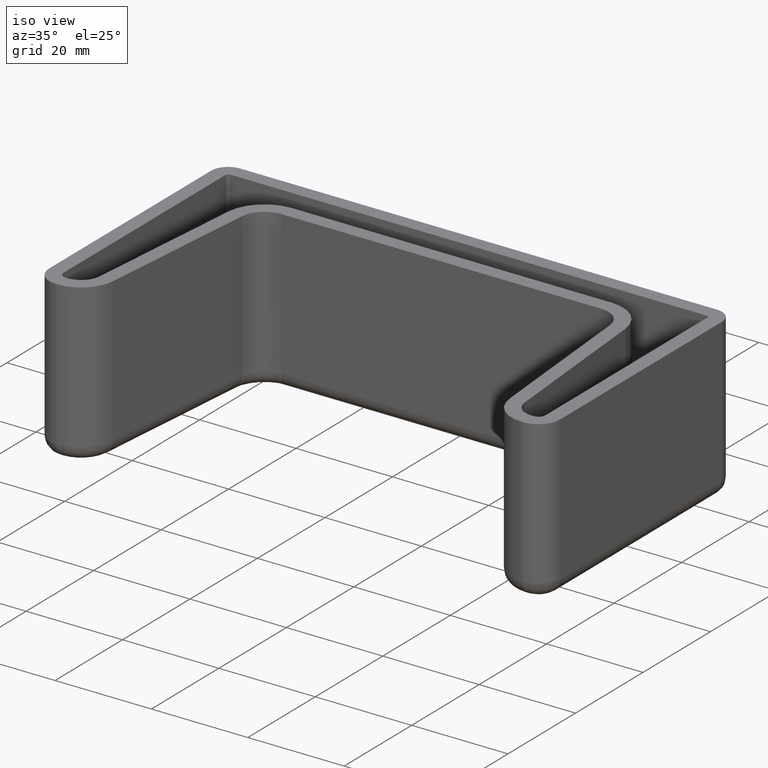
[diagram: clean part render]
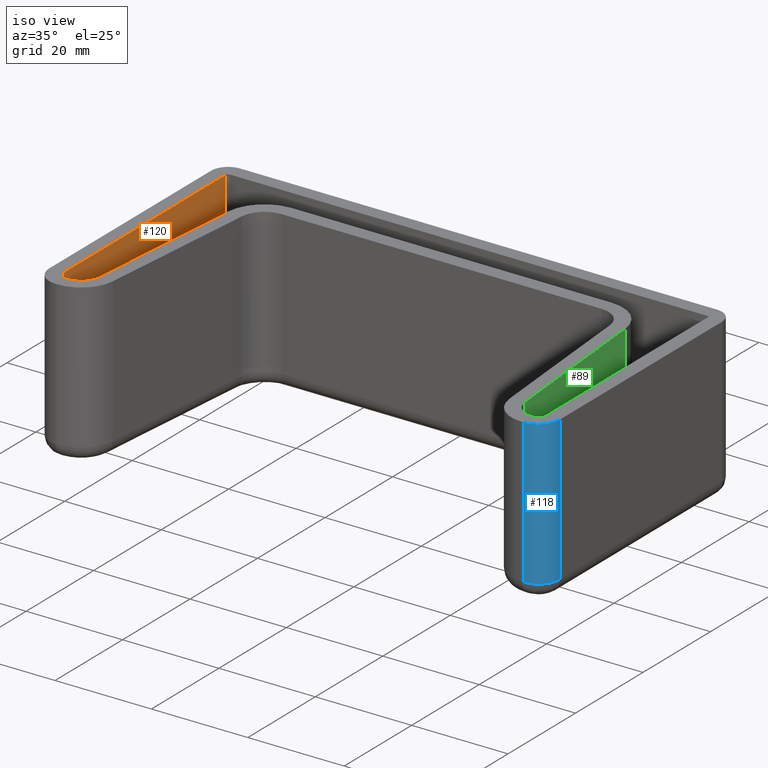
[diagram: same view with three faces highlighted in distinct colors, each labeled with its STEP entity id]
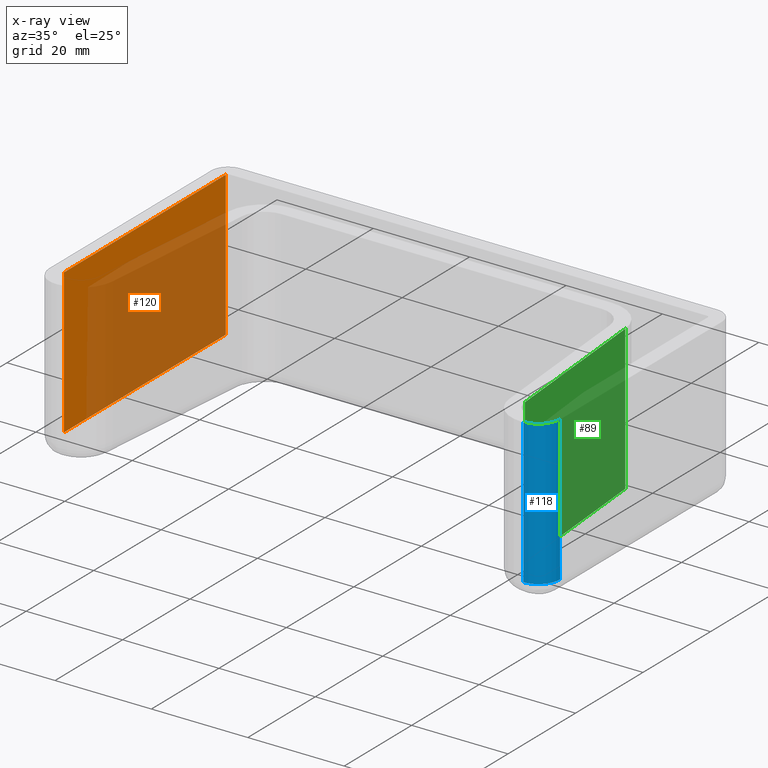
[diagram: x-ray of the same camera — body ghosted, the three highlighted faces saturated]
A machine part, iso view with three faces highlighted in distinct colors.
The next image is the same camera in x-ray (body ghosted, the three faces saturated) — at least one of them is partly hidden behind the body in this view.
Their STEP definitions:

[orange] entity #120 — the highlighted planar face has unit normal (-1, 0, 0).
#120 = ADVANCED_FACE( '', ( #218 ), #219, .F. );
#218 = FACE_OUTER_BOUND( '', #381, .T. );
#219 = PLANE( '', #382 );
#381 = EDGE_LOOP( '', ( #748, #749, #750, #751 ) );
#382 = AXIS2_PLACEMENT_3D( '', #752, #753, #754 );
#748 = ORIENTED_EDGE( '', *, *, #791, .F. );
#749 = ORIENTED_EDGE( '', *, *, #852, .T. );
#750 = ORIENTED_EDGE( '', *, *, #829, .F. );
#751 = ORIENTED_EDGE( '', *, *, #818, .F. );
#752 = CARTESIAN_POINT( '', ( -50.0000000000000, -47.5000000000000, 0.000188393064015901 ) );
#753 = DIRECTION( '', ( -1.00000000000000, 1.49966072182214E-032, 1.22460635382238E-016 ) );
#754 = DIRECTION( '', ( -2.17533787218538E-032, -1.00000000000000, -5.51750485577873E-017 ) );
#791 = EDGE_CURVE( '', #918, #921, #922, .T. );
#818 = EDGE_CURVE( '', #921, #974, #975, .T. );
#829 = EDGE_CURVE( '', #974, #992, #994, .T. );
#852 = EDGE_CURVE( '', #918, #992, #1033, .T. );
#918 = VERTEX_POINT( '', #1126 );
#921 = VERTEX_POINT( '', #1129 );
#922 = LINE( '', #1130, #1131 );
#974 = VERTEX_POINT( '', #1196 );
#975 = LINE( '', #1197, #1198 );
#992 = VERTEX_POINT( '', #1221 );
#994 = LINE( '', #1223, #1224 );
#1033 = LINE( '', #1276, #1277 );
#1126 = CARTESIAN_POINT( '', ( -50.0000000000000, -46.0000000000000, -29.9998116069360 ) );
#1129 = CARTESIAN_POINT( '', ( -50.0000000000000, -46.0000000000000, 0.000188393064015717 ) );
#1130 = CARTESIAN_POINT( '', ( -50.0000000000000, -46.0000000000000, 0.000188393064015717 ) );
#1131 = VECTOR( '', #1409, 1000.00000000000 );
#1196 = CARTESIAN_POINT( '', ( -50.0000000000000, 2.00000000000000, 0.000188393064009839 ) );
#1197 = CARTESIAN_POINT( '', ( -50.0000000000000, -35.0000000000000, 0.000188393064014370 ) );
#1198 = VECTOR( '', #1462, 1000.00000000000 );
#1221 = CARTESIAN_POINT( '', ( -50.0000000000000, 2.00000000000000, -29.9998116069360 ) );
#1223 = CARTESIAN_POINT( '', ( -50.0000000000000, 2.00000000000000, 0.000188393064009839 ) );
#1224 = VECTOR( '', #1481, 1000.00000000000 );
#1276 = CARTESIAN_POINT( '', ( -50.0000000000000, 2.50000000000000, -29.9998116069360 ) );
#1277 = VECTOR( '', #1522, 1000.00000000000 );
#1409 = DIRECTION( '', ( 1.22460635382238E-016, 1.22460635382238E-016, 1.00000000000000 ) );
#1462 = DIRECTION( '', ( -1.77635683940025E-016, 1.00000000000000, -1.22460635382238E-016 ) );
#1481 = DIRECTION( '', ( -1.22460635382238E-016, -1.22460635382238E-016, -1.00000000000000 ) );
#1522 = DIRECTION( '', ( -1.77635683940025E-016, 1.00000000000000, -1.22460635382238E-016 ) );

[blue] entity #118 — the highlighted cylindrical surface (edge-blend (fillet) strip) has radius 4.5 mm, axis along (-0, -0, -1).
#118 = ADVANCED_FACE( '', ( #214 ), #215, .T. );
#214 = FACE_OUTER_BOUND( '', #377, .T. );
#215 = CYLINDRICAL_SURFACE( '', #378, 4.50000000000000 );
#377 = EDGE_LOOP( '', ( #734, #735, #736, #737 ) );
#378 = AXIS2_PLACEMENT_3D( '', #738, #739, #740 );
#734 = ORIENTED_EDGE( '', *, *, #873, .F. );
#735 = ORIENTED_EDGE( '', *, *, #866, .T. );
#736 = ORIENTED_EDGE( '', *, *, #794, .T. );
#737 = ORIENTED_EDGE( '', *, *, #916, .T. );
#738 = CARTESIAN_POINT( '', ( 48.5000000000000, -46.0000000000000, -29.9998116069360 ) );
#739 = DIRECTION( '', ( -1.22460635382238E-016, -1.22460635382238E-016, -1.00000000000000 ) );
#740 = DIRECTION( '', ( 0.707106781186548, -0.707106781186548, 0.000000000000000 ) );
#794 = EDGE_CURVE( '', #926, #927, #928, .T. );
#866 = EDGE_CURVE( '', #1049, #926, #1052, .T. );
#873 = EDGE_CURVE( '', #1049, #1058, #1064, .T. );
#916 = EDGE_CURVE( '', #927, #1058, #1124, .T. );
#926 = VERTEX_POINT( '', #1136 );
#927 = VERTEX_POINT( '', #1137 );
#928 = CIRCLE( '', #1138, 4.50000000000000 );
#1049 = VERTEX_POINT( '', #1303 );
#1052 = LINE( '', #1308, #1309 );
#1058 = VERTEX_POINT( '', #1317 );
#1064 = CIRCLE( '', #1323, 4.50000000000000 );
#1124 = LINE( '', #1403, #1404 );
#1136 = CARTESIAN_POINT( '', ( 53.0000000000000, -46.0000000000000, 0.000188393064001839 ) );
#1137 = CARTESIAN_POINT( '', ( 48.5000000000000, -50.5000000000000, 0.000188393064002390 ) );
#1138 = AXIS2_PLACEMENT_3D( '', #1414, #1415, #1416 );
#1303 = CARTESIAN_POINT( '', ( 53.0000000000000, -46.0000000000000, -29.9998116069360 ) );
#1308 = CARTESIAN_POINT( '', ( 53.0000000000000, -46.0000000000000, -29.9998116069360 ) );
#1309 = VECTOR( '', #1538, 1000.00000000000 );
#1317 = CARTESIAN_POINT( '', ( 48.5000000000000, -50.5000000000000, -29.9998116069360 ) );
#1323 = AXIS2_PLACEMENT_3D( '', #1553, #1554, #1555 );
#1403 = CARTESIAN_POINT( '', ( 48.5000000000000, -50.5000000000000, -29.9998116069360 ) );
#1404 = VECTOR( '', #1642, 1000.00000000000 );
#1414 = CARTESIAN_POINT( '', ( 48.5000000000000, -46.0000000000000, 0.000188393064001839 ) );
#1415 = DIRECTION( '', ( -1.22460635382238E-016, -1.22460635382238E-016, -1.00000000000000 ) );
#1416 = DIRECTION( '', ( 0.707106781186548, -0.707106781186548, 0.000000000000000 ) );
#1538 = DIRECTION( '', ( 1.22460635382238E-016, 1.22460635382238E-016, 1.00000000000000 ) );
#1553 = CARTESIAN_POINT( '', ( 48.5000000000000, -46.0000000000000, -29.9998116069360 ) );
#1554 = DIRECTION( '', ( -1.22460635382238E-016, -1.22460635382238E-016, -1.00000000000000 ) );
#1555 = DIRECTION( '', ( 0.707106781186548, -0.707106781186548, 0.000000000000000 ) );
#1642 = DIRECTION( '', ( -1.22460635382238E-016, -1.22460635382238E-016, -1.00000000000000 ) );

[green] entity #89 — the highlighted planar face has unit normal (-0.9962, -0.0872, 0).
#89 = ADVANCED_FACE( '', ( #156 ), #157, .F. );
#156 = FACE_OUTER_BOUND( '', #259, .T. );
#157 = PLANE( '', #260 );
#259 = EDGE_LOOP( '', ( #531, #532, #533, #534 ) );
#260 = AXIS2_PLACEMENT_3D( '', #535, #536, #537 );
#531 = ORIENTED_EDGE( '', *, *, #811, .F. );
#532 = ORIENTED_EDGE( '', *, *, #857, .T. );
#533 = ORIENTED_EDGE( '', *, *, #846, .T. );
#534 = ORIENTED_EDGE( '', *, *, #856, .F. );
#535 = CARTESIAN_POINT( '', ( 44.1495357623693, -43.8486229709906, 0.000188393064001576 ) );
#536 = DIRECTION( '', ( -0.996194698091746, -0.0871557427476585, 1.32667783326821E-016 ) );
#537 = DIRECTION( '', ( -1.22460635382238E-016, -1.22460635382238E-016, -1.00000000000000 ) );
#811 = EDGE_CURVE( '', #959, #961, #962, .T. );
#846 = EDGE_CURVE( '', #1022, #1020, #1023, .T. );
#856 = EDGE_CURVE( '', #961, #1020, #1037, .T. );
#857 = EDGE_CURVE( '', #959, #1022, #1038, .T. );
#959 = VERTEX_POINT( '', #1177 );
#961 = VERTEX_POINT( '', #1179 );
#962 = LINE( '', #1180, #1181 );
#1020 = VERTEX_POINT( '', #1260 );
#1022 = VERTEX_POINT( '', #1262 );
#1023 = LINE( '', #1263, #1264 );
#1037 = LINE( '', #1284, #1285 );
#1038 = LINE( '', #1286, #1287 );
#1177 = CARTESIAN_POINT( '', ( 44.1495357623693, -43.8486229709906, 0.000188393064001576 ) );
#1179 = CARTESIAN_POINT( '', ( 41.1709081925946, -9.80275405801880, 0.000188393063997407 ) );
#1180 = CARTESIAN_POINT( '', ( 43.1500172744657, -32.4240743766757, 0.000188393064000177 ) );
#1181 = VECTOR( '', #1449, 1000.00000000000 );
#1260 = CARTESIAN_POINT( '', ( 41.1709081925946, -9.80275405801880, -29.9998116069360 ) );
#1262 = CARTESIAN_POINT( '', ( 44.1495357623693, -43.8486229709906, -29.9998116069360 ) );
#1263 = CARTESIAN_POINT( '', ( 41.1709081925946, -9.80275405801880, -29.9998116069360 ) );
#1264 = VECTOR( '', #1510, 1000.00000000000 );
#1284 = CARTESIAN_POINT( '', ( 41.1709081925946, -9.80275405801880, 0.000188393063997407 ) );
#1285 = VECTOR( '', #1526, 1000.00000000000 );
#1286 = CARTESIAN_POINT( '', ( 44.1495357623693, -43.8486229709906, 0.000188393064001576 ) );
#1287 = VECTOR( '', #1527, 1000.00000000000 );
#1449 = DIRECTION( '', ( -0.0871557427476585, 0.996194698091746, -1.11321488058643E-016 ) );
#1510 = DIRECTION( '', ( -0.0871557427476585, 0.996194698091746, -1.11321488058643E-016 ) );
#1526 = DIRECTION( '', ( -1.22460635382238E-016, -1.22460635382238E-016, -1.00000000000000 ) );
#1527 = DIRECTION( '', ( -1.22460635382238E-016, -1.22460635382238E-016, -1.00000000000000 ) );